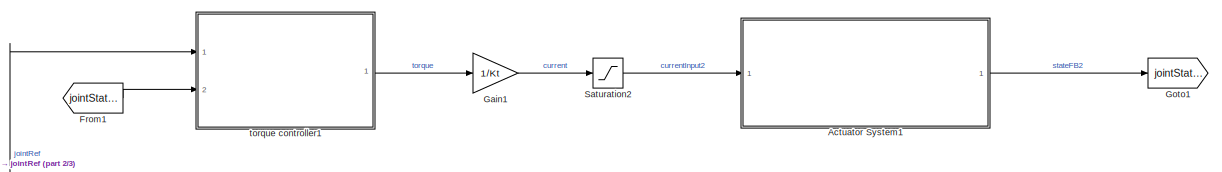
[diagram: root canvas - part 1/3, full width, top band]
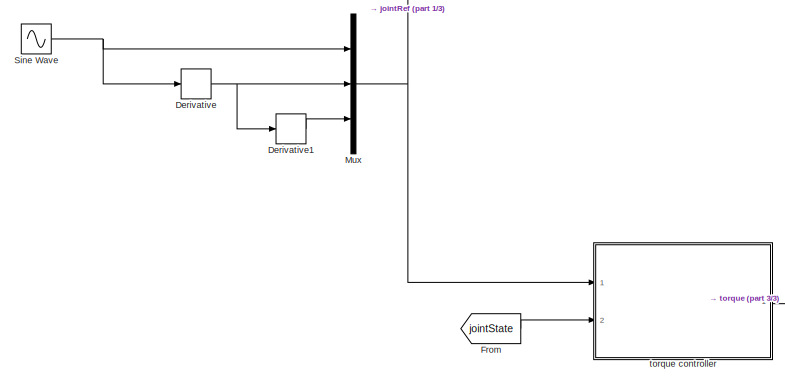
[diagram: root canvas - part 2/3, middle left region]
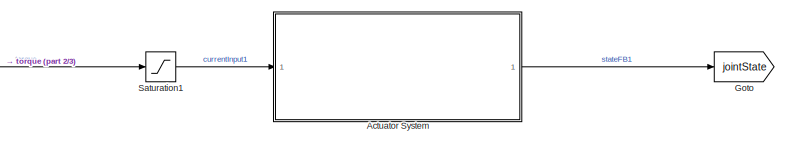
[diagram: root canvas - part 3/3, bottom right region]
MODEL slx_8ade65e0d61b
KIND model
CONFIG AbsTol = auto
CONFIG EnableMultiTasking = off
CONFIG FixedStep = dt
CONFIG MaxStep = auto
CONFIG MinStep = auto
CONFIG RelTol = 1e-3
CONFIG SampleTimeConstraint = Unconstrained
CONFIG SolverName = ode5
CONFIG StartTime = 0.0
CONFIG StopTime = runT
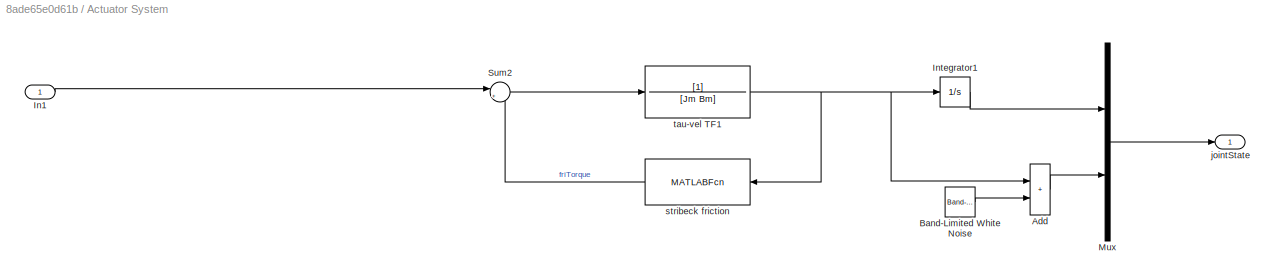
BLOCK [SubSystem] Actuator System
  Commented = on
  Ports = [1, 1]
  RequestExecContextInheritance = off
BLOCK [Sum] Actuator System/Add
  IconShape = rectangular
  Ports = [2, 1]
BLOCK [Reference] Actuator System/Band-Limited White Noise  REF=simulink/Sources/Band-Limited
White Noise
  Ports = [0, 1]
  SourceBlock = simulink/Sources/Band-Limited\nWhite Noise
  SourceProductBaseCode = SL
  SourceType = Band-Limited White Noise.
BLOCK [Inport] Actuator System/In1
BLOCK [Integrator] Actuator System/Integrator1
  Ports = [1, 1]
BLOCK [Mux] Actuator System/Mux
  DisplayOption = bar
  Inputs = 2
  Ports = [2, 1]
BLOCK [Sum] Actuator System/Sum2
  Inputs = |+-
  Ports = [2, 1]
BLOCK [Outport] Actuator System/jointState
BLOCK [MATLABFcn] Actuator System/stribeck friction
  MATLABFcn = stribeckFriction(u)
  Ports = [1, 1]
BLOCK [TransferFcn] Actuator System/tau-vel TF1
  Denominator = [Jm Bm]
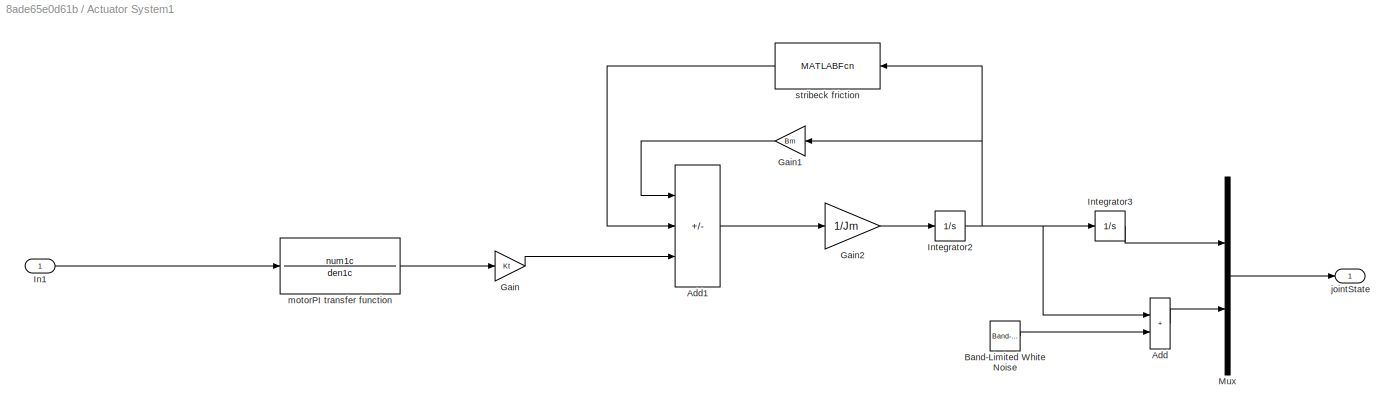
BLOCK [SubSystem] Actuator System1
  Ports = [1, 1]
  RequestExecContextInheritance = off
BLOCK [Sum] Actuator System1/Add
  IconShape = rectangular
  Ports = [2, 1]
BLOCK [Sum] Actuator System1/Add1
  IconShape = rectangular
  Inputs = --+
  Ports = [3, 1]
BLOCK [Reference] Actuator System1/Band-Limited White Noise  REF=simulink/Sources/Band-Limited
White Noise
  Ports = [0, 1]
  SourceBlock = simulink/Sources/Band-Limited\nWhite Noise
  SourceProductBaseCode = SL
  SourceType = Band-Limited White Noise.
BLOCK [Gain] Actuator System1/Gain
  Gain = Kt
BLOCK [Gain] Actuator System1/Gain1
  Gain = Bm
  NameLocation = top
BLOCK [Gain] Actuator System1/Gain2
  Gain = 1/Jm
BLOCK [Inport] Actuator System1/In1
BLOCK [Integrator] Actuator System1/Integrator2
  Ports = [1, 1]
BLOCK [Integrator] Actuator System1/Integrator3
  Ports = [1, 1]
BLOCK [Mux] Actuator System1/Mux
  DisplayOption = bar
  Inputs = 2
  Ports = [2, 1]
BLOCK [Outport] Actuator System1/jointState
BLOCK [TransferFcn] Actuator System1/motorPI transfer function
  Denominator = den1c
  Numerator = num1c
BLOCK [MATLABFcn] Actuator System1/stribeck friction
  MATLABFcn = stribeckFriction(u)
  Ports = [1, 1]
BLOCK [Derivative] Derivative
BLOCK [Derivative] Derivative1
BLOCK [From] From
  Commented = on
  GotoTag = jointState
BLOCK [From] From1
  GotoTag = jointState1
BLOCK [Gain] Gain1
  Gain = 1/Kt
BLOCK [Goto] Goto
  Commented = on
  GotoTag = jointState
BLOCK [Goto] Goto1
  GotoTag = jointState1
BLOCK [Mux] Mux
  DisplayOption = bar
  Inputs = 3
  Ports = [3, 1]
BLOCK [Saturate] Saturation1
  Commented = on
  LowerLimit = -tauMax
  UpperLimit = tauMax
BLOCK [Saturate] Saturation2
  LowerLimit = -iMax
  UpperLimit = iMax
BLOCK [Sin] Sine Wave
  Amplitude = 3
  Frequency = 5
  Ports = [0, 1]
  SampleTime = 0
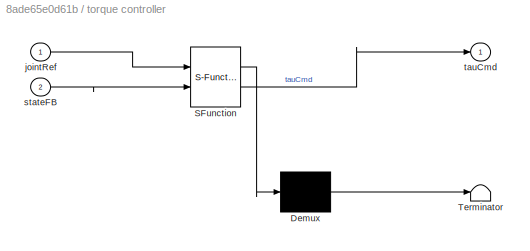
BLOCK [SubSystem] torque controller
  Commented = on
  ErrorFcn = Stateflow.Translate.translate
  PermitHierarchicalResolution = ExplicitOnly
  Ports = [2, 1]
  RequestExecContextInheritance = off
  SFBlockType = MATLAB Function
  TreatAsAtomicUnit = on
BLOCK [Demux] torque controller/ Demux 
  Outputs = 1
  Ports = [1, 1]
BLOCK [S-Function] torque controller/ SFunction 
  EnableBusSupport = on
  FunctionName = sf_sfun
  Parameters = simPara
  PortCounts = [2 2]
  Ports = [2, 2]
  SFcnIsStateOwnerBlock = off
  SFunctionDeploymentMode = off
  Tag = Stateflow S-Function 2
BLOCK [Terminator] torque controller/ Terminator 
BLOCK [Inport] torque controller/jointRef
BLOCK [Inport] torque controller/stateFB
  Port = 2
BLOCK [Outport] torque controller/tauCmd
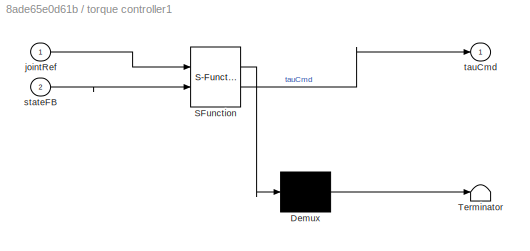
BLOCK [SubSystem] torque controller1
  ErrorFcn = Stateflow.Translate.translate
  PermitHierarchicalResolution = ExplicitOnly
  Ports = [2, 1]
  RequestExecContextInheritance = off
  SFBlockType = MATLAB Function
  TreatAsAtomicUnit = on
BLOCK [Demux] torque controller1/ Demux 
  Outputs = 1
  Ports = [1, 1]
BLOCK [S-Function] torque controller1/ SFunction 
  EnableBusSupport = on
  FunctionName = sf_sfun
  Parameters = simPara
  PortCounts = [2 2]
  Ports = [2, 2]
  SFcnIsStateOwnerBlock = off
  SFunctionDeploymentMode = off
  Tag = Stateflow S-Function 1
BLOCK [Terminator] torque controller1/ Terminator 
BLOCK [Inport] torque controller1/jointRef
BLOCK [Inport] torque controller1/stateFB
  Port = 2
BLOCK [Outport] torque controller1/tauCmd
LINE Actuator System/Add:1 -> Actuator System/Mux:2
LINE Actuator System/Band-Limited White Noise:1 -> Actuator System/Add:2
LINE Actuator System/In1:1 -> Actuator System/Sum2:1
LINE Actuator System/Integrator1:1 -> Actuator System/Mux:1
LINE Actuator System/Mux:1 -> Actuator System/jointState:1
LINE Actuator System/Sum2:1 -> Actuator System/tau-vel TF1:1
LINE Actuator System/stribeck friction:1 -> Actuator System/Sum2:2
NET Actuator System/tau-vel TF1:1 -> Actuator System/Add:1, Actuator System/Integrator1:1, Actuator System/stribeck friction:1
LINE Actuator System1/Add1:1 -> Actuator System1/Gain2:1
LINE Actuator System1/Add:1 -> Actuator System1/Mux:2
LINE Actuator System1/Band-Limited White Noise:1 -> Actuator System1/Add:2
LINE Actuator System1/Gain1:1 -> Actuator System1/Add1:1
LINE Actuator System1/Gain2:1 -> Actuator System1/Integrator2:1
LINE Actuator System1/Gain:1 -> Actuator System1/Add1:3
LINE Actuator System1/In1:1 -> Actuator System1/motorPI transfer function:1
NET Actuator System1/Integrator2:1 -> Actuator System1/Add:1, Actuator System1/Gain1:1, Actuator System1/Integrator3:1, Actuator System1/stribeck friction:1
LINE Actuator System1/Integrator3:1 -> Actuator System1/Mux:1
LINE Actuator System1/Mux:1 -> Actuator System1/jointState:1
LINE Actuator System1/motorPI transfer function:1 -> Actuator System1/Gain:1
LINE Actuator System1/stribeck friction:1 -> Actuator System1/Add1:2
LINE Actuator System1:1 -> Goto1:1
LINE Actuator System:1 -> Goto:1
LINE Derivative1:1 -> Mux:3
NET Derivative:1 -> Derivative1:1, Mux:2
LINE From1:1 -> torque controller1:2
LINE From:1 -> torque controller:2
LINE Gain1:1 -> Saturation2:1
NET Mux:1 -> torque controller1:1, torque controller:1
LINE Saturation1:1 -> Actuator System:1
LINE Saturation2:1 -> Actuator System1:1
NET Sine Wave:1 -> Derivative:1, Mux:1
LINE torque controller1:1 -> Gain1:1
LINE torque controller:1 -> Saturation1:1
note: NET lines group one-source signal fan-out (src -> all destinations, sorted); 1:1 wires keep LINE
CHART torque controller1 states=1 transitions=1
  STATE_LABEL 'eML_blk_kernel()'
  STATE_LABEL 'SCRIPT:\nfunction tauCmd = fcn(jointRef, stateFB, simPara)\n\nqRef    = jointRef(1);\nqdRef   = jointRef(2);\nqddRef  = jointRef(3);\nqFB     = stateFB(1);\nqdFB    = stateFB(2);\n\nJm = simPara.Jm;\nBm = simPara.Bm;\nkp = simPara.kp;\nkd = simPara.kd;\n\nfriTorqueFFD = stribeckFriction(qdFB);\n\nqError = qRef - qFB;\nqdError = qdRef - qdFB;\n\nfeedbackTorque = kp * qError + kd * qdError;\nfeedforwardTorque = friTorq...<+113ch>'
CHART torque controller states=1 transitions=1
  STATE_LABEL 'eML_blk_kernel()'
  STATE_LABEL 'SCRIPT:\nfunction tauCmd = fcn(jointRef, stateFB, simPara)\n\nqRef    = jointRef(1);\nqdRef   = jointRef(2);\nqddRef  = jointRef(3);\nqFB     = stateFB(1);\nqdFB    = stateFB(2);\n\nJm = simPara.Jm;\nBm = simPara.Bm;\nkp = simPara.kp;\nkd = simPara.kd;\n\nfriTorqueFFD = stribeckFriction(qdFB);\n\nqError = qRef - qFB;\nqdError = qdRef - qdFB;\n\nfeedbackTorque = kp * qError + kd * qdError;\nfeedforwardTorque = friTorq...<+113ch>'
CHART  states=0 transitions=0
CHART  states=0 transitions=0
